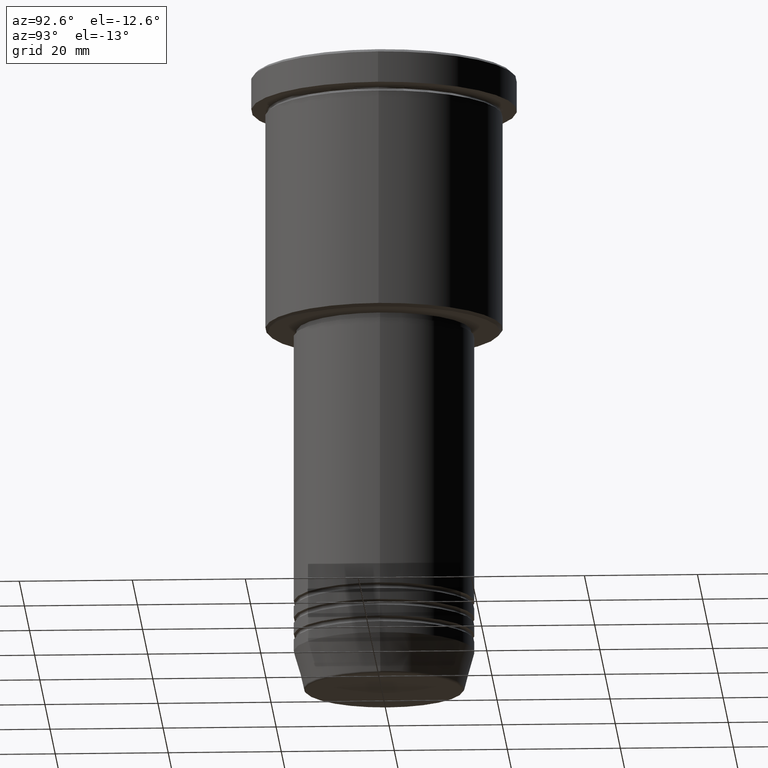
[diagram: clean part render]
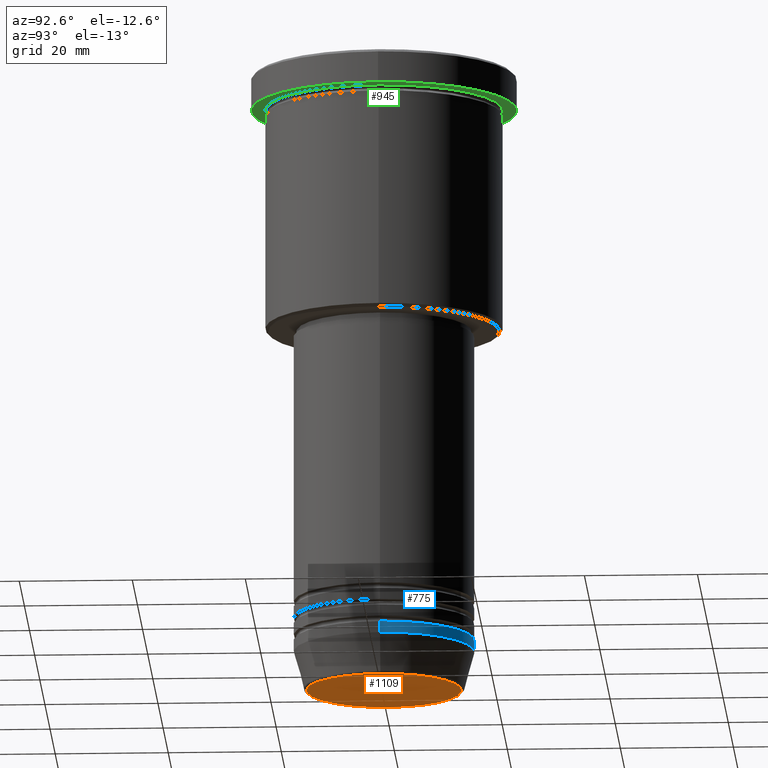
[diagram: same view with three faces highlighted in distinct colors, each labeled with its STEP entity id]
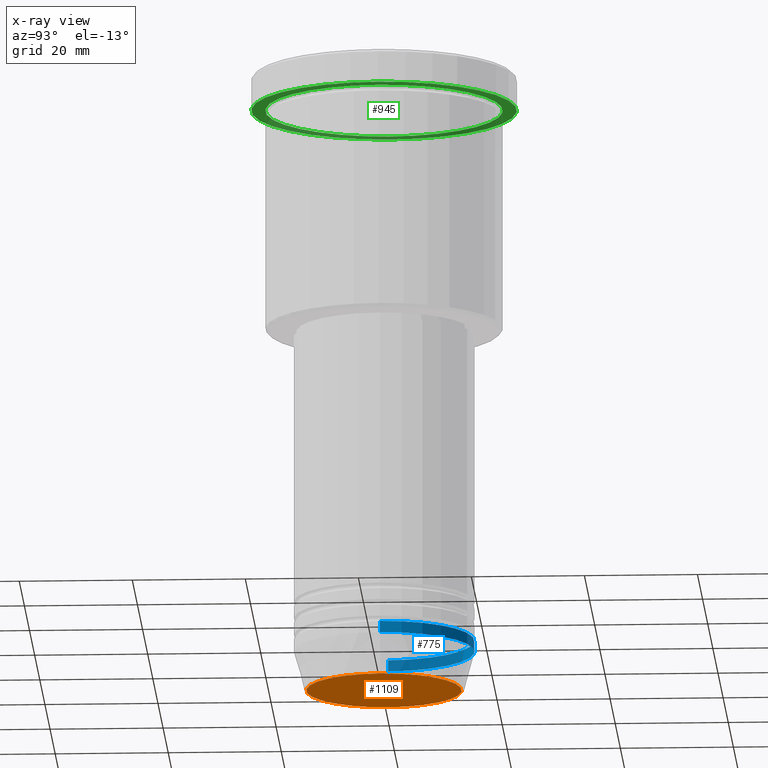
[diagram: x-ray of the same camera — body ghosted, the three highlighted faces saturated]
A machine part, auxiliary view with three faces highlighted in distinct colors.
The next image is the same camera in x-ray (body ghosted, the three faces saturated) — at least one of them is partly hidden behind the body in this view.
Their STEP definitions:

[orange] entity #1109 — the highlighted planar face has unit normal (0, -0, 1).
#51 = DIRECTION ( 'NONE',  ( 1.000000000000000000, 0.000000000000000000, 0.000000000000000000 ) ) ;
#71 = CARTESIAN_POINT ( 'NONE',  ( 0.000000000000000000, 0.000000000000000000, -111.0000000000000000 ) ) ;
#80 = DIRECTION ( 'NONE',  ( 0.000000000000000000, 0.000000000000000000, -1.000000000000000000 ) ) ;
#107 = VERTEX_POINT ( 'NONE', #834 ) ;
#227 = PLANE ( 'NONE',  #265 ) ;
#233 = FACE_OUTER_BOUND ( 'NONE', #548, .T. ) ;
#236 = DIRECTION ( 'NONE',  ( 0.000000000000000000, -0.000000000000000000, 1.000000000000000000 ) ) ;
#239 = DIRECTION ( 'NONE',  ( 0.000000000000000000, 0.000000000000000000, -1.000000000000000000 ) ) ;
#265 = AXIS2_PLACEMENT_3D ( 'NONE', #1145, #236, #51 ) ;
#269 = VERTEX_POINT ( 'NONE', #588 ) ;
#429 = CARTESIAN_POINT ( 'NONE',  ( 0.000000000000000000, 0.000000000000000000, -111.0000000000000000 ) ) ;
#445 = DIRECTION ( 'NONE',  ( 1.000000000000000000, 0.000000000000000000, 0.000000000000000000 ) ) ;
#517 = AXIS2_PLACEMENT_3D ( 'NONE', #71, #80, #445 ) ;
#548 = EDGE_LOOP ( 'NONE', ( #560, #1148 ) ) ;
#560 = ORIENTED_EDGE ( 'NONE', *, *, #713, .T. ) ;
#588 = CARTESIAN_POINT ( 'NONE',  ( 13.74069215899265828, 0.000000000000000000, -111.0000000000000000 ) ) ;
#713 = EDGE_CURVE ( 'NONE', #269, #107, #889, .T. ) ;
#834 = CARTESIAN_POINT ( 'NONE',  ( -13.74069215899265828, 1.712322416342415986E-15, -111.0000000000000000 ) ) ;
#839 = AXIS2_PLACEMENT_3D ( 'NONE', #429, #239, #876 ) ;
#876 = DIRECTION ( 'NONE',  ( 1.000000000000000000, 0.000000000000000000, 0.000000000000000000 ) ) ;
#889 = CIRCLE ( 'NONE', #839, 13.74069215899265828 ) ;
#920 = EDGE_CURVE ( 'NONE', #107, #269, #1157, .T. ) ;
#1109 = ADVANCED_FACE ( 'NONE', ( #233 ), #227, .F. ) ;
#1145 = CARTESIAN_POINT ( 'NONE',  ( 0.000000000000000000, 0.000000000000000000, -111.0000000000000000 ) ) ;
#1148 = ORIENTED_EDGE ( 'NONE', *, *, #920, .T. ) ;
#1157 = CIRCLE ( 'NONE', #517, 13.74069215899265828 ) ;

[blue] entity #775 — the highlighted cylindrical surface (partial cylindrical patch) has radius 16 mm, axis along (-0, -0, 1).
#15 = EDGE_CURVE ( 'NONE', #61, #57, #681, .T. ) ;
#57 = VERTEX_POINT ( 'NONE', #648 ) ;
#61 = VERTEX_POINT ( 'NONE', #807 ) ;
#92 = ORIENTED_EDGE ( 'NONE', *, *, #15, .F. ) ;
#118 = AXIS2_PLACEMENT_3D ( 'NONE', #146, #859, #408 ) ;
#146 = CARTESIAN_POINT ( 'NONE',  ( 0.000000000000000000, 0.000000000000000000, 0.000000000000000000 ) ) ;
#192 = VERTEX_POINT ( 'NONE', #673 ) ;
#219 = ORIENTED_EDGE ( 'NONE', *, *, #951, .F. ) ;
#372 = EDGE_LOOP ( 'NONE', ( #875, #1162, #92, #219 ) ) ;
#385 = AXIS2_PLACEMENT_3D ( 'NONE', #847, #922, #916 ) ;
#408 = DIRECTION ( 'NONE',  ( 1.000000000000000000, 0.000000000000000000, 0.000000000000000000 ) ) ;
#436 = VECTOR ( 'NONE', #692, 1000.000000000000000 ) ;
#456 = EDGE_CURVE ( 'NONE', #723, #192, #646, .T. ) ;
#462 = LINE ( 'NONE', #831, #966 ) ;
#482 = DIRECTION ( 'NONE',  ( -0.000000000000000000, -0.000000000000000000, 1.000000000000000000 ) ) ;
#516 = EDGE_CURVE ( 'NONE', #192, #57, #736, .T. ) ;
#563 = DIRECTION ( 'NONE',  ( -0.000000000000000000, -0.000000000000000000, 1.000000000000000000 ) ) ;
#646 = CIRCLE ( 'NONE', #385, 16.00000000000000000 ) ;
#648 = CARTESIAN_POINT ( 'NONE',  ( -16.00000000000000000, 1.959434878635765131E-15, -102.0000000000000142 ) ) ;
#673 = CARTESIAN_POINT ( 'NONE',  ( -16.00000000000000000, 1.959434878635765131E-15, -104.0000000000000142 ) ) ;
#681 = CIRCLE ( 'NONE', #904, 16.00000000000000000 ) ;
#692 = DIRECTION ( 'NONE',  ( -0.000000000000000000, -0.000000000000000000, 1.000000000000000000 ) ) ;
#723 = VERTEX_POINT ( 'NONE', #870 ) ;
#736 = LINE ( 'NONE', #824, #436 ) ;
#775 = ADVANCED_FACE ( 'NONE', ( #971 ), #947, .T. ) ;
#807 = CARTESIAN_POINT ( 'NONE',  ( 16.00000000000000000, 0.000000000000000000, -102.0000000000000142 ) ) ;
#824 = CARTESIAN_POINT ( 'NONE',  ( -16.00000000000000000, 1.959434878635765131E-15, 0.000000000000000000 ) ) ;
#831 = CARTESIAN_POINT ( 'NONE',  ( 16.00000000000000000, 0.000000000000000000, 0.000000000000000000 ) ) ;
#847 = CARTESIAN_POINT ( 'NONE',  ( 0.000000000000000000, 0.000000000000000000, -104.0000000000000142 ) ) ;
#859 = DIRECTION ( 'NONE',  ( -0.000000000000000000, -0.000000000000000000, 1.000000000000000000 ) ) ;
#870 = CARTESIAN_POINT ( 'NONE',  ( 16.00000000000000000, 0.000000000000000000, -104.0000000000000142 ) ) ;
#875 = ORIENTED_EDGE ( 'NONE', *, *, #456, .T. ) ;
#904 = AXIS2_PLACEMENT_3D ( 'NONE', #1098, #563, #912 ) ;
#912 = DIRECTION ( 'NONE',  ( 1.000000000000000000, 0.000000000000000000, 0.000000000000000000 ) ) ;
#916 = DIRECTION ( 'NONE',  ( 1.000000000000000000, 0.000000000000000000, 0.000000000000000000 ) ) ;
#922 = DIRECTION ( 'NONE',  ( -0.000000000000000000, -0.000000000000000000, 1.000000000000000000 ) ) ;
#947 = CYLINDRICAL_SURFACE ( 'NONE', #118, 16.00000000000000000 ) ;
#951 = EDGE_CURVE ( 'NONE', #723, #61, #462, .T. ) ;
#966 = VECTOR ( 'NONE', #482, 1000.000000000000000 ) ;
#971 = FACE_OUTER_BOUND ( 'NONE', #372, .T. ) ;
#1098 = CARTESIAN_POINT ( 'NONE',  ( 0.000000000000000000, 0.000000000000000000, -102.0000000000000142 ) ) ;
#1162 = ORIENTED_EDGE ( 'NONE', *, *, #516, .T. ) ;

[green] entity #945 — the highlighted planar face has unit normal (0, 0, -1).
#42 = CARTESIAN_POINT ( 'NONE',  ( 0.000000000000000000, 0.000000000000000000, -5.999999999999994671 ) ) ;
#49 = EDGE_CURVE ( 'NONE', #1026, #81, #559, .T. ) ;
#81 = VERTEX_POINT ( 'NONE', #459 ) ;
#97 = CIRCLE ( 'NONE', #906, 21.00000000000000000 ) ;
#101 = CARTESIAN_POINT ( 'NONE',  ( 0.000000000000000000, 23.50000000000000000, -5.999999999999994671 ) ) ;
#115 = AXIS2_PLACEMENT_3D ( 'NONE', #748, #1111, #940 ) ;
#154 = AXIS2_PLACEMENT_3D ( 'NONE', #101, #1019, #186 ) ;
#171 = ORIENTED_EDGE ( 'NONE', *, *, #494, .T. ) ;
#186 = DIRECTION ( 'NONE',  ( -1.000000000000000000, 0.000000000000000000, -0.000000000000000000 ) ) ;
#208 = CIRCLE ( 'NONE', #244, 21.00000000000000000 ) ;
#244 = AXIS2_PLACEMENT_3D ( 'NONE', #1035, #836, #504 ) ;
#272 = EDGE_CURVE ( 'NONE', #81, #1026, #606, .T. ) ;
#289 = EDGE_LOOP ( 'NONE', ( #637, #171 ) ) ;
#368 = VERTEX_POINT ( 'NONE', #686 ) ;
#387 = VERTEX_POINT ( 'NONE', #530 ) ;
#459 = CARTESIAN_POINT ( 'NONE',  ( -23.50000000000000000, 2.877919977996280320E-15, -5.999999999999994671 ) ) ;
#461 = ORIENTED_EDGE ( 'NONE', *, *, #49, .F. ) ;
#471 = PLANE ( 'NONE',  #154 ) ;
#487 = CARTESIAN_POINT ( 'NONE',  ( 23.50000000000000000, 0.000000000000000000, -5.999999999999994671 ) ) ;
#494 = EDGE_CURVE ( 'NONE', #387, #368, #208, .T. ) ;
#504 = DIRECTION ( 'NONE',  ( -1.000000000000000000, 0.000000000000000000, 0.000000000000000000 ) ) ;
#530 = CARTESIAN_POINT ( 'NONE',  ( 21.00000000000000000, 2.571758278209441661E-15, -5.999999999999994671 ) ) ;
#559 = CIRCLE ( 'NONE', #1039, 23.50000000000000000 ) ;
#599 = DIRECTION ( 'NONE',  ( -0.000000000000000000, -0.000000000000000000, 1.000000000000000000 ) ) ;
#606 = CIRCLE ( 'NONE', #115, 23.50000000000000000 ) ;
#637 = ORIENTED_EDGE ( 'NONE', *, *, #687, .T. ) ;
#638 = DIRECTION ( 'NONE',  ( 1.000000000000000000, 0.000000000000000000, 0.000000000000000000 ) ) ;
#665 = FACE_OUTER_BOUND ( 'NONE', #714, .T. ) ;
#686 = CARTESIAN_POINT ( 'NONE',  ( -21.00000000000000000, 0.000000000000000000, -5.999999999999994671 ) ) ;
#687 = EDGE_CURVE ( 'NONE', #368, #387, #97, .T. ) ;
#714 = EDGE_LOOP ( 'NONE', ( #461, #789 ) ) ;
#731 = CARTESIAN_POINT ( 'NONE',  ( 0.000000000000000000, 0.000000000000000000, -5.999999999999994671 ) ) ;
#734 = DIRECTION ( 'NONE',  ( -0.000000000000000000, -0.000000000000000000, 1.000000000000000000 ) ) ;
#748 = CARTESIAN_POINT ( 'NONE',  ( 0.000000000000000000, 0.000000000000000000, -5.999999999999994671 ) ) ;
#789 = ORIENTED_EDGE ( 'NONE', *, *, #272, .F. ) ;
#836 = DIRECTION ( 'NONE',  ( -0.000000000000000000, -0.000000000000000000, 1.000000000000000000 ) ) ;
#906 = AXIS2_PLACEMENT_3D ( 'NONE', #42, #599, #1144 ) ;
#940 = DIRECTION ( 'NONE',  ( 1.000000000000000000, 0.000000000000000000, 0.000000000000000000 ) ) ;
#945 = ADVANCED_FACE ( 'NONE', ( #1091, #665 ), #471, .T. ) ;
#1019 = DIRECTION ( 'NONE',  ( 0.000000000000000000, 0.000000000000000000, -1.000000000000000000 ) ) ;
#1026 = VERTEX_POINT ( 'NONE', #487 ) ;
#1035 = CARTESIAN_POINT ( 'NONE',  ( 0.000000000000000000, 0.000000000000000000, -5.999999999999994671 ) ) ;
#1039 = AXIS2_PLACEMENT_3D ( 'NONE', #731, #734, #638 ) ;
#1091 = FACE_BOUND ( 'NONE', #289, .T. ) ;
#1111 = DIRECTION ( 'NONE',  ( -0.000000000000000000, -0.000000000000000000, 1.000000000000000000 ) ) ;
#1144 = DIRECTION ( 'NONE',  ( -1.000000000000000000, 0.000000000000000000, 0.000000000000000000 ) ) ;